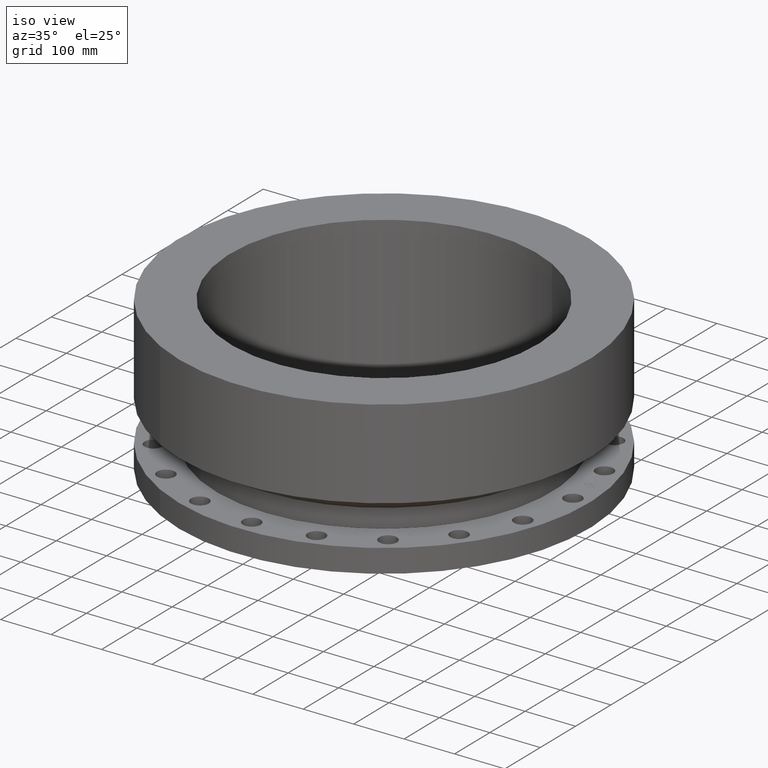
[diagram: clean part render]
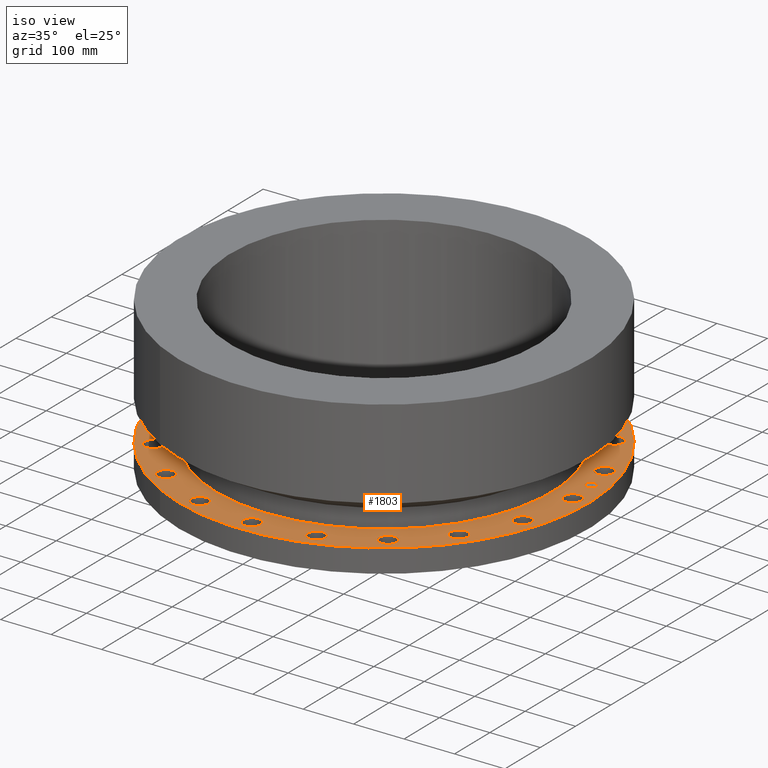
[diagram: same view with one face highlighted and labeled with its STEP entity id]
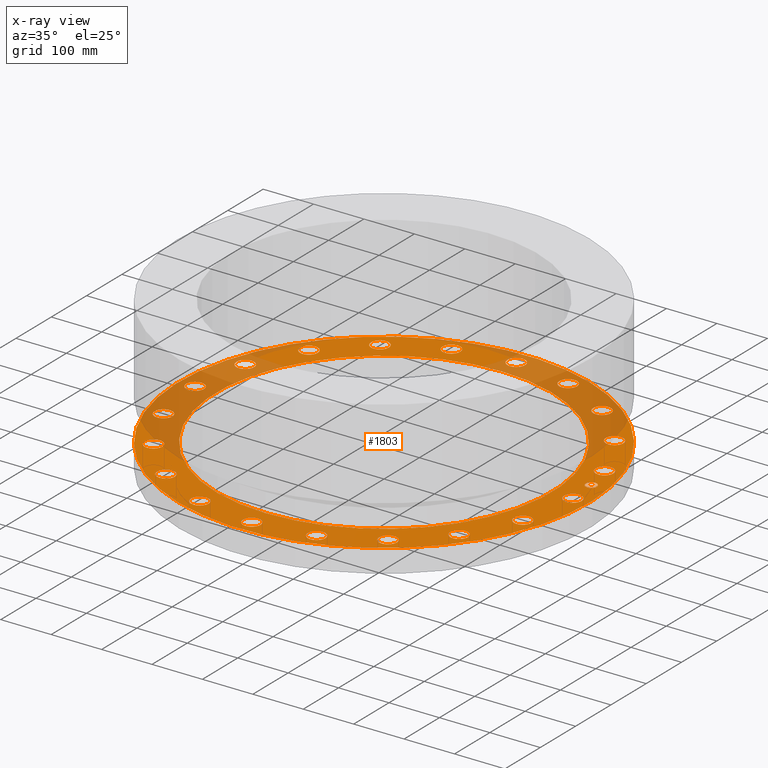
[diagram: x-ray of the same camera — body ghosted, the highlighted face saturated]
A machine part, iso view. The second image highlights one B-rep face of the part: STEP entity #1803.
The next image is the same camera in x-ray: the body ghosted, the highlighted face saturated — about 35% of this face is hidden behind the body in this view.
In plain terms, the highlighted planar face has unit normal (0, 0, -1).
Its self-contained STEP definition (entity closure, byte-faithful):
#65=AXIS2_PLACEMENT_3D('Circle Axis2P3D',#63,#64,$) ;
#482=AXIS2_PLACEMENT_3D('Circle Axis2P3D',#480,#481,$) ;
#501=AXIS2_PLACEMENT_3D('Circle Axis2P3D',#499,#500,$) ;
#518=AXIS2_PLACEMENT_3D('Circle Axis2P3D',#516,#517,$) ;
#553=AXIS2_PLACEMENT_3D('Circle Axis2P3D',#551,#552,$) ;
#865=AXIS2_PLACEMENT_3D('Circle Axis2P3D',#863,#864,$) ;
#896=AXIS2_PLACEMENT_3D('Circle Axis2P3D',#894,#895,$) ;
#908=AXIS2_PLACEMENT_3D('Circle Axis2P3D',#906,#907,$) ;
#939=AXIS2_PLACEMENT_3D('Circle Axis2P3D',#937,#938,$) ;
#951=AXIS2_PLACEMENT_3D('Circle Axis2P3D',#949,#950,$) ;
#982=AXIS2_PLACEMENT_3D('Circle Axis2P3D',#980,#981,$) ;
#994=AXIS2_PLACEMENT_3D('Circle Axis2P3D',#992,#993,$) ;
#1025=AXIS2_PLACEMENT_3D('Circle Axis2P3D',#1023,#1024,$) ;
#1037=AXIS2_PLACEMENT_3D('Circle Axis2P3D',#1035,#1036,$) ;
#1068=AXIS2_PLACEMENT_3D('Circle Axis2P3D',#1066,#1067,$) ;
#1080=AXIS2_PLACEMENT_3D('Circle Axis2P3D',#1078,#1079,$) ;
#1111=AXIS2_PLACEMENT_3D('Circle Axis2P3D',#1109,#1110,$) ;
#1123=AXIS2_PLACEMENT_3D('Circle Axis2P3D',#1121,#1122,$) ;
#1154=AXIS2_PLACEMENT_3D('Circle Axis2P3D',#1152,#1153,$) ;
#1166=AXIS2_PLACEMENT_3D('Circle Axis2P3D',#1164,#1165,$) ;
#1197=AXIS2_PLACEMENT_3D('Circle Axis2P3D',#1195,#1196,$) ;
#1209=AXIS2_PLACEMENT_3D('Circle Axis2P3D',#1207,#1208,$) ;
#1240=AXIS2_PLACEMENT_3D('Circle Axis2P3D',#1238,#1239,$) ;
#1252=AXIS2_PLACEMENT_3D('Circle Axis2P3D',#1250,#1251,$) ;
#1283=AXIS2_PLACEMENT_3D('Circle Axis2P3D',#1281,#1282,$) ;
#1295=AXIS2_PLACEMENT_3D('Circle Axis2P3D',#1293,#1294,$) ;
#1326=AXIS2_PLACEMENT_3D('Circle Axis2P3D',#1324,#1325,$) ;
#1338=AXIS2_PLACEMENT_3D('Circle Axis2P3D',#1336,#1337,$) ;
#1369=AXIS2_PLACEMENT_3D('Circle Axis2P3D',#1367,#1368,$) ;
#1381=AXIS2_PLACEMENT_3D('Circle Axis2P3D',#1379,#1380,$) ;
#1412=AXIS2_PLACEMENT_3D('Circle Axis2P3D',#1410,#1411,$) ;
#1424=AXIS2_PLACEMENT_3D('Circle Axis2P3D',#1422,#1423,$) ;
#1455=AXIS2_PLACEMENT_3D('Circle Axis2P3D',#1453,#1454,$) ;
#1467=AXIS2_PLACEMENT_3D('Circle Axis2P3D',#1465,#1466,$) ;
#1498=AXIS2_PLACEMENT_3D('Circle Axis2P3D',#1496,#1497,$) ;
#1510=AXIS2_PLACEMENT_3D('Circle Axis2P3D',#1508,#1509,$) ;
#1541=AXIS2_PLACEMENT_3D('Circle Axis2P3D',#1539,#1540,$) ;
#1553=AXIS2_PLACEMENT_3D('Circle Axis2P3D',#1551,#1552,$) ;
#1584=AXIS2_PLACEMENT_3D('Circle Axis2P3D',#1582,#1583,$) ;
#1596=AXIS2_PLACEMENT_3D('Circle Axis2P3D',#1594,#1595,$) ;
#1627=AXIS2_PLACEMENT_3D('Circle Axis2P3D',#1625,#1626,$) ;
#1639=AXIS2_PLACEMENT_3D('Circle Axis2P3D',#1637,#1638,$) ;
#1670=AXIS2_PLACEMENT_3D('Circle Axis2P3D',#1668,#1669,$) ;
#1682=AXIS2_PLACEMENT_3D('Circle Axis2P3D',#1680,#1681,$) ;
#1695=AXIS2_PLACEMENT_3D('Plane Axis2P3D',#1692,#1693,#1694) ;
#1787=AXIS2_PLACEMENT_3D('Circle Axis2P3D',#1785,#1786,$) ;
#1796=AXIS2_PLACEMENT_3D('Circle Axis2P3D',#1794,#1795,$) ;
#44=CARTESIAN_POINT('Vertex',(15.3555319678,0.330803621638,1.81750000001)) ;
#60=CARTESIAN_POINT('Vertex',(14.1444680324,-0.330803621638,1.81750000001)) ;
#63=CARTESIAN_POINT('Axis2P3D Location',(14.7500000001,0.,1.81750000001)) ;
#477=CARTESIAN_POINT('Vertex',(-7.6708086177,-14.0413209903,1.81750000001)) ;
#480=CARTESIAN_POINT('Axis2P3D Location',(0.,0.,1.81750000001)) ;
#484=CARTESIAN_POINT('Vertex',(7.6708086177,14.0413209903,1.81750000001)) ;
#499=CARTESIAN_POINT('Axis2P3D Location',(0.,0.,1.81750000001)) ;
#516=CARTESIAN_POINT('Axis2P3D Location',(0.,0.,1.81750000001)) ;
#520=CARTESIAN_POINT('Vertex',(6.28526881113,11.5051073864,1.81750000001)) ;
#522=CARTESIAN_POINT('Vertex',(-6.28526881113,-11.5051073864,1.81750000001)) ;
#551=CARTESIAN_POINT('Axis2P3D Location',(0.,0.,1.81750000001)) ;
#863=CARTESIAN_POINT('Axis2P3D Location',(14.7500000001,0.,1.81750000001)) ;
#884=CARTESIAN_POINT('Vertex',(14.70620268,-4.43050739573,1.81750000001)) ;
#891=CARTESIAN_POINT('Vertex',(13.3499645508,-4.68549393836,1.81750000001)) ;
#894=CARTESIAN_POINT('Axis2P3D Location',(14.0280836154,-4.55800066705,1.81750000001)) ;
#906=CARTESIAN_POINT('Axis2P3D Location',(14.0280836154,-4.55800066705,1.81750000001)) ;
#927=CARTESIAN_POINT('Vertex',(12.6173278098,-8.75812948005,1.81750000001)) ;
#934=CARTESIAN_POINT('Vertex',(11.2486735244,-8.58153546265,1.81750000001)) ;
#937=CARTESIAN_POINT('Axis2P3D Location',(11.9330006671,-8.66983247135,1.81750000001)) ;
#949=CARTESIAN_POINT('Axis2P3D Location',(11.9330006671,-8.66983247135,1.81750000001)) ;
#970=CARTESIAN_POINT('Vertex',(9.29338098346,-12.2284448294,1.81750000001)) ;
#977=CARTESIAN_POINT('Vertex',(8.04628395923,-11.6375565048,1.81750000001)) ;
#980=CARTESIAN_POINT('Axis2P3D Location',(8.66983247135,-11.9330006671,1.81750000001)) ;
#992=CARTESIAN_POINT('Axis2P3D Location',(8.66983247135,-11.9330006671,1.81750000001)) ;
#1013=CARTESIAN_POINT('Vertex',(5.05973327568,-14.5017547982,1.81750000001)) ;
#1020=CARTESIAN_POINT('Vertex',(4.05626805842,-13.5544124326,1.81750000001)) ;
#1023=CARTESIAN_POINT('Axis2P3D Location',(4.55800066705,-14.0280836154,1.81750000001)) ;
#1035=CARTESIAN_POINT('Axis2P3D Location',(4.55800066705,-14.0280836154,1.81750000001)) ;
#1056=CARTESIAN_POINT('Vertex',(0.330803621638,-15.3555319678,1.81750000001)) ;
#1063=CARTESIAN_POINT('Vertex',(-0.330803621638,-14.1444680324,1.81750000001)) ;
#1066=CARTESIAN_POINT('Axis2P3D Location',(4.17833493703E-015,-14.7500000001,1.81750000001)) ;
#1078=CARTESIAN_POINT('Axis2P3D Location',(4.17833493703E-015,-14.7500000001,1.81750000001)) ;
#1099=CARTESIAN_POINT('Vertex',(-4.43050739573,-14.70620268,1.81750000001)) ;
#1106=CARTESIAN_POINT('Vertex',(-4.68549393836,-13.3499645508,1.81750000001)) ;
#1109=CARTESIAN_POINT('Axis2P3D Location',(-4.55800066705,-14.0280836154,1.81750000001)) ;
#1121=CARTESIAN_POINT('Axis2P3D Location',(-4.55800066705,-14.0280836154,1.81750000001)) ;
#1142=CARTESIAN_POINT('Vertex',(-8.75812948005,-12.6173278098,1.81750000001)) ;
#1149=CARTESIAN_POINT('Vertex',(-8.58153546265,-11.2486735244,1.81750000001)) ;
#1152=CARTESIAN_POINT('Axis2P3D Location',(-8.66983247135,-11.9330006671,1.81750000001)) ;
#1164=CARTESIAN_POINT('Axis2P3D Location',(-8.66983247135,-11.9330006671,1.81750000001)) ;
#1185=CARTESIAN_POINT('Vertex',(-12.2284448294,-9.29338098346,1.81750000001)) ;
#1192=CARTESIAN_POINT('Vertex',(-11.6375565048,-8.04628395923,1.81750000001)) ;
#1195=CARTESIAN_POINT('Axis2P3D Location',(-11.9330006671,-8.66983247135,1.81750000001)) ;
#1207=CARTESIAN_POINT('Axis2P3D Location',(-11.9330006671,-8.66983247135,1.81750000001)) ;
#1228=CARTESIAN_POINT('Vertex',(-14.5017547982,-5.05973327568,1.81750000001)) ;
#1235=CARTESIAN_POINT('Vertex',(-13.5544124326,-4.05626805842,1.81750000001)) ;
#1238=CARTESIAN_POINT('Axis2P3D Location',(-14.0280836154,-4.55800066705,1.81750000001)) ;
#1250=CARTESIAN_POINT('Axis2P3D Location',(-14.0280836154,-4.55800066705,1.81750000001)) ;
#1271=CARTESIAN_POINT('Vertex',(-15.3555319678,-0.330803621638,1.81750000001)) ;
#1278=CARTESIAN_POINT('Vertex',(-14.1444680324,0.330803621638,1.81750000001)) ;
#1281=CARTESIAN_POINT('Axis2P3D Location',(-14.7500000001,-8.35666987406E-015,1.81750000001)) ;
#1293=CARTESIAN_POINT('Axis2P3D Location',(-14.7500000001,-8.35666987406E-015,1.81750000001)) ;
#1314=CARTESIAN_POINT('Vertex',(-14.70620268,4.43050739573,1.81750000001)) ;
#1321=CARTESIAN_POINT('Vertex',(-13.3499645508,4.68549393836,1.81750000001)) ;
#1324=CARTESIAN_POINT('Axis2P3D Location',(-14.0280836154,4.55800066705,1.81750000001)) ;
#1336=CARTESIAN_POINT('Axis2P3D Location',(-14.0280836154,4.55800066705,1.81750000001)) ;
#1357=CARTESIAN_POINT('Vertex',(-12.6173278098,8.75812948005,1.81750000001)) ;
#1364=CARTESIAN_POINT('Vertex',(-11.2486735244,8.58153546265,1.81750000001)) ;
#1367=CARTESIAN_POINT('Axis2P3D Location',(-11.9330006671,8.66983247135,1.81750000001)) ;
#1379=CARTESIAN_POINT('Axis2P3D Location',(-11.9330006671,8.66983247135,1.81750000001)) ;
#1400=CARTESIAN_POINT('Vertex',(-9.29338098346,12.2284448294,1.81750000001)) ;
#1407=CARTESIAN_POINT('Vertex',(-8.04628395923,11.6375565048,1.81750000001)) ;
#1410=CARTESIAN_POINT('Axis2P3D Location',(-8.66983247135,11.9330006671,1.81750000001)) ;
#1422=CARTESIAN_POINT('Axis2P3D Location',(-8.66983247135,11.9330006671,1.81750000001)) ;
#1443=CARTESIAN_POINT('Vertex',(-5.05973327568,14.5017547982,1.81750000001)) ;
#1450=CARTESIAN_POINT('Vertex',(-4.05626805842,13.5544124326,1.81750000001)) ;
#1453=CARTESIAN_POINT('Axis2P3D Location',(-4.55800066705,14.0280836154,1.81750000001)) ;
#1465=CARTESIAN_POINT('Axis2P3D Location',(-4.55800066705,14.0280836154,1.81750000001)) ;
#1486=CARTESIAN_POINT('Vertex',(-0.330803621638,15.3555319678,1.81750000001)) ;
#1493=CARTESIAN_POINT('Vertex',(0.330803621638,14.1444680324,1.81750000001)) ;
#1496=CARTESIAN_POINT('Axis2P3D Location',(-1.58101627338E-014,14.7500000001,1.81750000001)) ;
#1508=CARTESIAN_POINT('Axis2P3D Location',(-1.58101627338E-014,14.7500000001,1.81750000001)) ;
#1529=CARTESIAN_POINT('Vertex',(4.43050739573,14.70620268,1.81750000001)) ;
#1536=CARTESIAN_POINT('Vertex',(4.68549393836,13.3499645508,1.81750000001)) ;
#1539=CARTESIAN_POINT('Axis2P3D Location',(4.55800066705,14.0280836154,1.81750000001)) ;
#1551=CARTESIAN_POINT('Axis2P3D Location',(4.55800066705,14.0280836154,1.81750000001)) ;
#1572=CARTESIAN_POINT('Vertex',(8.75812948005,12.6173278098,1.81750000001)) ;
#1579=CARTESIAN_POINT('Vertex',(8.58153546265,11.2486735244,1.81750000001)) ;
#1582=CARTESIAN_POINT('Axis2P3D Location',(8.66983247135,11.9330006671,1.81750000001)) ;
#1594=CARTESIAN_POINT('Axis2P3D Location',(8.66983247135,11.9330006671,1.81750000001)) ;
#1615=CARTESIAN_POINT('Vertex',(12.2284448294,9.29338098346,1.81750000001)) ;
#1622=CARTESIAN_POINT('Vertex',(11.6375565048,8.04628395923,1.81750000001)) ;
#1625=CARTESIAN_POINT('Axis2P3D Location',(11.9330006671,8.66983247135,1.81750000001)) ;
#1637=CARTESIAN_POINT('Axis2P3D Location',(11.9330006671,8.66983247135,1.81750000001)) ;
#1658=CARTESIAN_POINT('Vertex',(14.5017547982,5.05973327568,1.81750000001)) ;
#1665=CARTESIAN_POINT('Vertex',(13.5544124326,4.05626805842,1.81750000001)) ;
#1668=CARTESIAN_POINT('Axis2P3D Location',(14.0280836154,4.55800066705,1.81750000001)) ;
#1680=CARTESIAN_POINT('Axis2P3D Location',(14.0280836154,4.55800066705,1.81750000001)) ;
#1692=CARTESIAN_POINT('Axis2P3D Location',(0.,16.0000000001,1.81750000001)) ;
#1785=CARTESIAN_POINT('Axis2P3D Location',(14.5684030238,2.30740835935,1.81750000001)) ;
#1789=CARTESIAN_POINT('Vertex',(14.6348876708,1.8876408188,1.81750000001)) ;
#1791=CARTESIAN_POINT('Vertex',(14.5019183769,2.72717589991,1.81750000001)) ;
#1794=CARTESIAN_POINT('Axis2P3D Location',(14.5684030238,2.30740835935,1.81750000001)) ;
#64=DIRECTION('Axis2P3D Direction',(0.,-0.,0.0393700787402)) ;
#481=DIRECTION('Axis2P3D Direction',(0.,0.,-0.0393700787402)) ;
#500=DIRECTION('Axis2P3D Direction',(0.,0.,-0.0393700787402)) ;
#517=DIRECTION('Axis2P3D Direction',(0.,0.,-0.0393700787402)) ;
#552=DIRECTION('Axis2P3D Direction',(0.,0.,-0.0393700787402)) ;
#864=DIRECTION('Axis2P3D Direction',(0.,-0.,0.0393700787402)) ;
#895=DIRECTION('Axis2P3D Direction',(-0.,0.,0.0393700787402)) ;
#907=DIRECTION('Axis2P3D Direction',(-0.,0.,0.0393700787402)) ;
#938=DIRECTION('Axis2P3D Direction',(-0.,0.,0.0393700787402)) ;
#950=DIRECTION('Axis2P3D Direction',(-0.,0.,0.0393700787402)) ;
#981=DIRECTION('Axis2P3D Direction',(-0.,0.,0.0393700787402)) ;
#993=DIRECTION('Axis2P3D Direction',(-0.,0.,0.0393700787402)) ;
#1024=DIRECTION('Axis2P3D Direction',(-0.,0.,0.0393700787402)) ;
#1036=DIRECTION('Axis2P3D Direction',(-0.,0.,0.0393700787402)) ;
#1067=DIRECTION('Axis2P3D Direction',(-0.,0.,0.0393700787402)) ;
#1079=DIRECTION('Axis2P3D Direction',(-0.,0.,0.0393700787402)) ;
#1110=DIRECTION('Axis2P3D Direction',(0.,0.,0.0393700787402)) ;
#1122=DIRECTION('Axis2P3D Direction',(0.,0.,0.0393700787402)) ;
#1153=DIRECTION('Axis2P3D Direction',(0.,0.,0.0393700787402)) ;
#1165=DIRECTION('Axis2P3D Direction',(0.,0.,0.0393700787402)) ;
#1196=DIRECTION('Axis2P3D Direction',(0.,0.,0.0393700787402)) ;
#1208=DIRECTION('Axis2P3D Direction',(0.,0.,0.0393700787402)) ;
#1239=DIRECTION('Axis2P3D Direction',(0.,0.,0.0393700787402)) ;
#1251=DIRECTION('Axis2P3D Direction',(0.,0.,0.0393700787402)) ;
#1282=DIRECTION('Axis2P3D Direction',(0.,0.,0.0393700787402)) ;
#1294=DIRECTION('Axis2P3D Direction',(0.,0.,0.0393700787402)) ;
#1325=DIRECTION('Axis2P3D Direction',(0.,0.,0.0393700787402)) ;
#1337=DIRECTION('Axis2P3D Direction',(0.,0.,0.0393700787402)) ;
#1368=DIRECTION('Axis2P3D Direction',(0.,0.,0.0393700787402)) ;
#1380=DIRECTION('Axis2P3D Direction',(0.,0.,0.0393700787402)) ;
#1411=DIRECTION('Axis2P3D Direction',(0.,0.,0.0393700787402)) ;
#1423=DIRECTION('Axis2P3D Direction',(0.,0.,0.0393700787402)) ;
#1454=DIRECTION('Axis2P3D Direction',(0.,0.,0.0393700787402)) ;
#1466=DIRECTION('Axis2P3D Direction',(0.,0.,0.0393700787402)) ;
#1497=DIRECTION('Axis2P3D Direction',(0.,0.,0.0393700787402)) ;
#1509=DIRECTION('Axis2P3D Direction',(0.,0.,0.0393700787402)) ;
#1540=DIRECTION('Axis2P3D Direction',(0.,-0.,0.0393700787402)) ;
#1552=DIRECTION('Axis2P3D Direction',(0.,-0.,0.0393700787402)) ;
#1583=DIRECTION('Axis2P3D Direction',(0.,-0.,0.0393700787402)) ;
#1595=DIRECTION('Axis2P3D Direction',(0.,-0.,0.0393700787402)) ;
#1626=DIRECTION('Axis2P3D Direction',(0.,-0.,0.0393700787402)) ;
#1638=DIRECTION('Axis2P3D Direction',(0.,-0.,0.0393700787402)) ;
#1669=DIRECTION('Axis2P3D Direction',(0.,-0.,0.0393700787402)) ;
#1681=DIRECTION('Axis2P3D Direction',(0.,-0.,0.0393700787402)) ;
#1693=DIRECTION('Axis2P3D Direction',(0.,0.,-0.0393700787402)) ;
#1694=DIRECTION('Axis2P3D XDirection',(0.0393700787402,0.,0.)) ;
#1786=DIRECTION('Axis2P3D Direction',(0.,0.,-0.0393700787402)) ;
#1795=DIRECTION('Axis2P3D Direction',(0.,0.,-0.0393700787402)) ;
#1698=ORIENTED_EDGE('',*,*,#503,.F.) ;
#1699=ORIENTED_EDGE('',*,*,#486,.F.) ;
#1702=ORIENTED_EDGE('',*,*,#67,.T.) ;
#1703=ORIENTED_EDGE('',*,*,#867,.T.) ;
#1706=ORIENTED_EDGE('',*,*,#555,.T.) ;
#1707=ORIENTED_EDGE('',*,*,#524,.T.) ;
#1710=ORIENTED_EDGE('',*,*,#910,.T.) ;
#1711=ORIENTED_EDGE('',*,*,#898,.T.) ;
#1714=ORIENTED_EDGE('',*,*,#953,.T.) ;
#1715=ORIENTED_EDGE('',*,*,#941,.T.) ;
#1718=ORIENTED_EDGE('',*,*,#996,.T.) ;
#1719=ORIENTED_EDGE('',*,*,#984,.T.) ;
#1722=ORIENTED_EDGE('',*,*,#1039,.T.) ;
#1723=ORIENTED_EDGE('',*,*,#1027,.T.) ;
#1726=ORIENTED_EDGE('',*,*,#1082,.T.) ;
#1727=ORIENTED_EDGE('',*,*,#1070,.T.) ;
#1730=ORIENTED_EDGE('',*,*,#1125,.T.) ;
#1731=ORIENTED_EDGE('',*,*,#1113,.T.) ;
#1734=ORIENTED_EDGE('',*,*,#1168,.T.) ;
#1735=ORIENTED_EDGE('',*,*,#1156,.T.) ;
#1738=ORIENTED_EDGE('',*,*,#1211,.T.) ;
#1739=ORIENTED_EDGE('',*,*,#1199,.T.) ;
#1742=ORIENTED_EDGE('',*,*,#1254,.T.) ;
#1743=ORIENTED_EDGE('',*,*,#1242,.T.) ;
#1746=ORIENTED_EDGE('',*,*,#1297,.T.) ;
#1747=ORIENTED_EDGE('',*,*,#1285,.T.) ;
#1750=ORIENTED_EDGE('',*,*,#1340,.T.) ;
#1751=ORIENTED_EDGE('',*,*,#1328,.T.) ;
#1754=ORIENTED_EDGE('',*,*,#1383,.T.) ;
#1755=ORIENTED_EDGE('',*,*,#1371,.T.) ;
#1758=ORIENTED_EDGE('',*,*,#1426,.T.) ;
#1759=ORIENTED_EDGE('',*,*,#1414,.T.) ;
#1762=ORIENTED_EDGE('',*,*,#1469,.T.) ;
#1763=ORIENTED_EDGE('',*,*,#1457,.T.) ;
#1766=ORIENTED_EDGE('',*,*,#1512,.T.) ;
#1767=ORIENTED_EDGE('',*,*,#1500,.T.) ;
#1770=ORIENTED_EDGE('',*,*,#1555,.T.) ;
#1771=ORIENTED_EDGE('',*,*,#1543,.T.) ;
#1774=ORIENTED_EDGE('',*,*,#1598,.T.) ;
#1775=ORIENTED_EDGE('',*,*,#1586,.T.) ;
#1778=ORIENTED_EDGE('',*,*,#1641,.T.) ;
#1779=ORIENTED_EDGE('',*,*,#1629,.T.) ;
#1782=ORIENTED_EDGE('',*,*,#1684,.T.) ;
#1783=ORIENTED_EDGE('',*,*,#1672,.T.) ;
#1800=ORIENTED_EDGE('',*,*,#1793,.F.) ;
#1801=ORIENTED_EDGE('',*,*,#1798,.F.) ;
#1704=FACE_BOUND('',#1701,.T.) ;
#1708=FACE_BOUND('',#1705,.T.) ;
#1712=FACE_BOUND('',#1709,.T.) ;
#1716=FACE_BOUND('',#1713,.T.) ;
#1720=FACE_BOUND('',#1717,.T.) ;
#1724=FACE_BOUND('',#1721,.T.) ;
#1728=FACE_BOUND('',#1725,.T.) ;
#1732=FACE_BOUND('',#1729,.T.) ;
#1736=FACE_BOUND('',#1733,.T.) ;
#1740=FACE_BOUND('',#1737,.T.) ;
#1744=FACE_BOUND('',#1741,.T.) ;
#1748=FACE_BOUND('',#1745,.T.) ;
#1752=FACE_BOUND('',#1749,.T.) ;
#1756=FACE_BOUND('',#1753,.T.) ;
#1760=FACE_BOUND('',#1757,.T.) ;
#1764=FACE_BOUND('',#1761,.T.) ;
#1768=FACE_BOUND('',#1765,.T.) ;
#1772=FACE_BOUND('',#1769,.T.) ;
#1776=FACE_BOUND('',#1773,.T.) ;
#1780=FACE_BOUND('',#1777,.T.) ;
#1784=FACE_BOUND('',#1781,.T.) ;
#1802=FACE_BOUND('',#1799,.T.) ;
#1803=ADVANCED_FACE('PartBody',(#1700,#1704,#1708,#1712,#1716,#1720,#1724,#1728,#1732,#1736,#1740,#1744,#1748,#1752,#1756,#1760,#1764,#1768,#1772,#1776,#1780,#1784,#1802),#1696,.F.) ;
#66=CIRCLE('generated circle',#65,0.690000000003) ;
#483=CIRCLE('generated circle',#482,16.0000000001) ;
#502=CIRCLE('generated circle',#501,16.0000000001) ;
#519=CIRCLE('generated circle',#518,13.1100000001) ;
#554=CIRCLE('generated circle',#553,13.1100000001) ;
#866=CIRCLE('generated circle',#865,0.690000000003) ;
#897=CIRCLE('generated circle',#896,0.690000000003) ;
#909=CIRCLE('generated circle',#908,0.690000000003) ;
#940=CIRCLE('generated circle',#939,0.690000000003) ;
#952=CIRCLE('generated circle',#951,0.690000000003) ;
#983=CIRCLE('generated circle',#982,0.690000000003) ;
#995=CIRCLE('generated circle',#994,0.690000000003) ;
#1026=CIRCLE('generated circle',#1025,0.690000000003) ;
#1038=CIRCLE('generated circle',#1037,0.690000000003) ;
#1069=CIRCLE('generated circle',#1068,0.690000000003) ;
#1081=CIRCLE('generated circle',#1080,0.690000000003) ;
#1112=CIRCLE('generated circle',#1111,0.690000000003) ;
#1124=CIRCLE('generated circle',#1123,0.690000000003) ;
#1155=CIRCLE('generated circle',#1154,0.690000000003) ;
#1167=CIRCLE('generated circle',#1166,0.690000000003) ;
#1198=CIRCLE('generated circle',#1197,0.690000000003) ;
#1210=CIRCLE('generated circle',#1209,0.690000000003) ;
#1241=CIRCLE('generated circle',#1240,0.690000000003) ;
#1253=CIRCLE('generated circle',#1252,0.690000000003) ;
#1284=CIRCLE('generated circle',#1283,0.690000000003) ;
#1296=CIRCLE('generated circle',#1295,0.690000000003) ;
#1327=CIRCLE('generated circle',#1326,0.690000000003) ;
#1339=CIRCLE('generated circle',#1338,0.690000000003) ;
#1370=CIRCLE('generated circle',#1369,0.690000000003) ;
#1382=CIRCLE('generated circle',#1381,0.690000000003) ;
#1413=CIRCLE('generated circle',#1412,0.690000000003) ;
#1425=CIRCLE('generated circle',#1424,0.690000000003) ;
#1456=CIRCLE('generated circle',#1455,0.690000000003) ;
#1468=CIRCLE('generated circle',#1467,0.690000000003) ;
#1499=CIRCLE('generated circle',#1498,0.690000000003) ;
#1511=CIRCLE('generated circle',#1510,0.690000000003) ;
#1542=CIRCLE('generated circle',#1541,0.690000000003) ;
#1554=CIRCLE('generated circle',#1553,0.690000000003) ;
#1585=CIRCLE('generated circle',#1584,0.690000000003) ;
#1597=CIRCLE('generated circle',#1596,0.690000000003) ;
#1628=CIRCLE('generated circle',#1627,0.690000000003) ;
#1640=CIRCLE('generated circle',#1639,0.690000000003) ;
#1671=CIRCLE('generated circle',#1670,0.690000000003) ;
#1683=CIRCLE('generated circle',#1682,0.690000000003) ;
#1788=CIRCLE('generated circle',#1787,0.424999995752) ;
#1797=CIRCLE('generated circle',#1796,0.424999995752) ;
#67=EDGE_CURVE('',#45,#61,#66,.F.) ;
#486=EDGE_CURVE('',#478,#485,#483,.T.) ;
#503=EDGE_CURVE('',#485,#478,#502,.T.) ;
#524=EDGE_CURVE('',#521,#523,#519,.T.) ;
#555=EDGE_CURVE('',#523,#521,#554,.T.) ;
#867=EDGE_CURVE('',#61,#45,#866,.F.) ;
#898=EDGE_CURVE('',#885,#892,#897,.F.) ;
#910=EDGE_CURVE('',#892,#885,#909,.F.) ;
#941=EDGE_CURVE('',#928,#935,#940,.F.) ;
#953=EDGE_CURVE('',#935,#928,#952,.F.) ;
#984=EDGE_CURVE('',#971,#978,#983,.F.) ;
#996=EDGE_CURVE('',#978,#971,#995,.F.) ;
#1027=EDGE_CURVE('',#1014,#1021,#1026,.F.) ;
#1039=EDGE_CURVE('',#1021,#1014,#1038,.F.) ;
#1070=EDGE_CURVE('',#1057,#1064,#1069,.F.) ;
#1082=EDGE_CURVE('',#1064,#1057,#1081,.F.) ;
#1113=EDGE_CURVE('',#1100,#1107,#1112,.F.) ;
#1125=EDGE_CURVE('',#1107,#1100,#1124,.F.) ;
#1156=EDGE_CURVE('',#1143,#1150,#1155,.F.) ;
#1168=EDGE_CURVE('',#1150,#1143,#1167,.F.) ;
#1199=EDGE_CURVE('',#1186,#1193,#1198,.F.) ;
#1211=EDGE_CURVE('',#1193,#1186,#1210,.F.) ;
#1242=EDGE_CURVE('',#1229,#1236,#1241,.F.) ;
#1254=EDGE_CURVE('',#1236,#1229,#1253,.F.) ;
#1285=EDGE_CURVE('',#1272,#1279,#1284,.F.) ;
#1297=EDGE_CURVE('',#1279,#1272,#1296,.F.) ;
#1328=EDGE_CURVE('',#1315,#1322,#1327,.F.) ;
#1340=EDGE_CURVE('',#1322,#1315,#1339,.F.) ;
#1371=EDGE_CURVE('',#1358,#1365,#1370,.F.) ;
#1383=EDGE_CURVE('',#1365,#1358,#1382,.F.) ;
#1414=EDGE_CURVE('',#1401,#1408,#1413,.F.) ;
#1426=EDGE_CURVE('',#1408,#1401,#1425,.F.) ;
#1457=EDGE_CURVE('',#1444,#1451,#1456,.F.) ;
#1469=EDGE_CURVE('',#1451,#1444,#1468,.F.) ;
#1500=EDGE_CURVE('',#1487,#1494,#1499,.F.) ;
#1512=EDGE_CURVE('',#1494,#1487,#1511,.F.) ;
#1543=EDGE_CURVE('',#1530,#1537,#1542,.F.) ;
#1555=EDGE_CURVE('',#1537,#1530,#1554,.F.) ;
#1586=EDGE_CURVE('',#1573,#1580,#1585,.F.) ;
#1598=EDGE_CURVE('',#1580,#1573,#1597,.F.) ;
#1629=EDGE_CURVE('',#1616,#1623,#1628,.F.) ;
#1641=EDGE_CURVE('',#1623,#1616,#1640,.F.) ;
#1672=EDGE_CURVE('',#1659,#1666,#1671,.F.) ;
#1684=EDGE_CURVE('',#1666,#1659,#1683,.F.) ;
#1793=EDGE_CURVE('',#1790,#1792,#1788,.F.) ;
#1798=EDGE_CURVE('',#1792,#1790,#1797,.F.) ;
#1697=EDGE_LOOP('',(#1698,#1699)) ;
#1701=EDGE_LOOP('',(#1702,#1703)) ;
#1705=EDGE_LOOP('',(#1706,#1707)) ;
#1709=EDGE_LOOP('',(#1710,#1711)) ;
#1713=EDGE_LOOP('',(#1714,#1715)) ;
#1717=EDGE_LOOP('',(#1718,#1719)) ;
#1721=EDGE_LOOP('',(#1722,#1723)) ;
#1725=EDGE_LOOP('',(#1726,#1727)) ;
#1729=EDGE_LOOP('',(#1730,#1731)) ;
#1733=EDGE_LOOP('',(#1734,#1735)) ;
#1737=EDGE_LOOP('',(#1738,#1739)) ;
#1741=EDGE_LOOP('',(#1742,#1743)) ;
#1745=EDGE_LOOP('',(#1746,#1747)) ;
#1749=EDGE_LOOP('',(#1750,#1751)) ;
#1753=EDGE_LOOP('',(#1754,#1755)) ;
#1757=EDGE_LOOP('',(#1758,#1759)) ;
#1761=EDGE_LOOP('',(#1762,#1763)) ;
#1765=EDGE_LOOP('',(#1766,#1767)) ;
#1769=EDGE_LOOP('',(#1770,#1771)) ;
#1773=EDGE_LOOP('',(#1774,#1775)) ;
#1777=EDGE_LOOP('',(#1778,#1779)) ;
#1781=EDGE_LOOP('',(#1782,#1783)) ;
#1799=EDGE_LOOP('',(#1800,#1801)) ;
#1700=FACE_OUTER_BOUND('',#1697,.T.) ;
#1696=PLANE('',#1695) ;
#45=VERTEX_POINT('',#44) ;
#61=VERTEX_POINT('',#60) ;
#478=VERTEX_POINT('',#477) ;
#485=VERTEX_POINT('',#484) ;
#521=VERTEX_POINT('',#520) ;
#523=VERTEX_POINT('',#522) ;
#885=VERTEX_POINT('',#884) ;
#892=VERTEX_POINT('',#891) ;
#928=VERTEX_POINT('',#927) ;
#935=VERTEX_POINT('',#934) ;
#971=VERTEX_POINT('',#970) ;
#978=VERTEX_POINT('',#977) ;
#1014=VERTEX_POINT('',#1013) ;
#1021=VERTEX_POINT('',#1020) ;
#1057=VERTEX_POINT('',#1056) ;
#1064=VERTEX_POINT('',#1063) ;
#1100=VERTEX_POINT('',#1099) ;
#1107=VERTEX_POINT('',#1106) ;
#1143=VERTEX_POINT('',#1142) ;
#1150=VERTEX_POINT('',#1149) ;
#1186=VERTEX_POINT('',#1185) ;
#1193=VERTEX_POINT('',#1192) ;
#1229=VERTEX_POINT('',#1228) ;
#1236=VERTEX_POINT('',#1235) ;
#1272=VERTEX_POINT('',#1271) ;
#1279=VERTEX_POINT('',#1278) ;
#1315=VERTEX_POINT('',#1314) ;
#1322=VERTEX_POINT('',#1321) ;
#1358=VERTEX_POINT('',#1357) ;
#1365=VERTEX_POINT('',#1364) ;
#1401=VERTEX_POINT('',#1400) ;
#1408=VERTEX_POINT('',#1407) ;
#1444=VERTEX_POINT('',#1443) ;
#1451=VERTEX_POINT('',#1450) ;
#1487=VERTEX_POINT('',#1486) ;
#1494=VERTEX_POINT('',#1493) ;
#1530=VERTEX_POINT('',#1529) ;
#1537=VERTEX_POINT('',#1536) ;
#1573=VERTEX_POINT('',#1572) ;
#1580=VERTEX_POINT('',#1579) ;
#1616=VERTEX_POINT('',#1615) ;
#1623=VERTEX_POINT('',#1622) ;
#1659=VERTEX_POINT('',#1658) ;
#1666=VERTEX_POINT('',#1665) ;
#1790=VERTEX_POINT('',#1789) ;
#1792=VERTEX_POINT('',#1791) ;